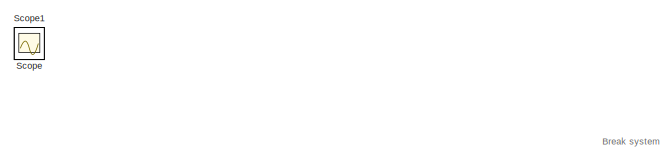
[diagram: root canvas - part 1/3, top center region]
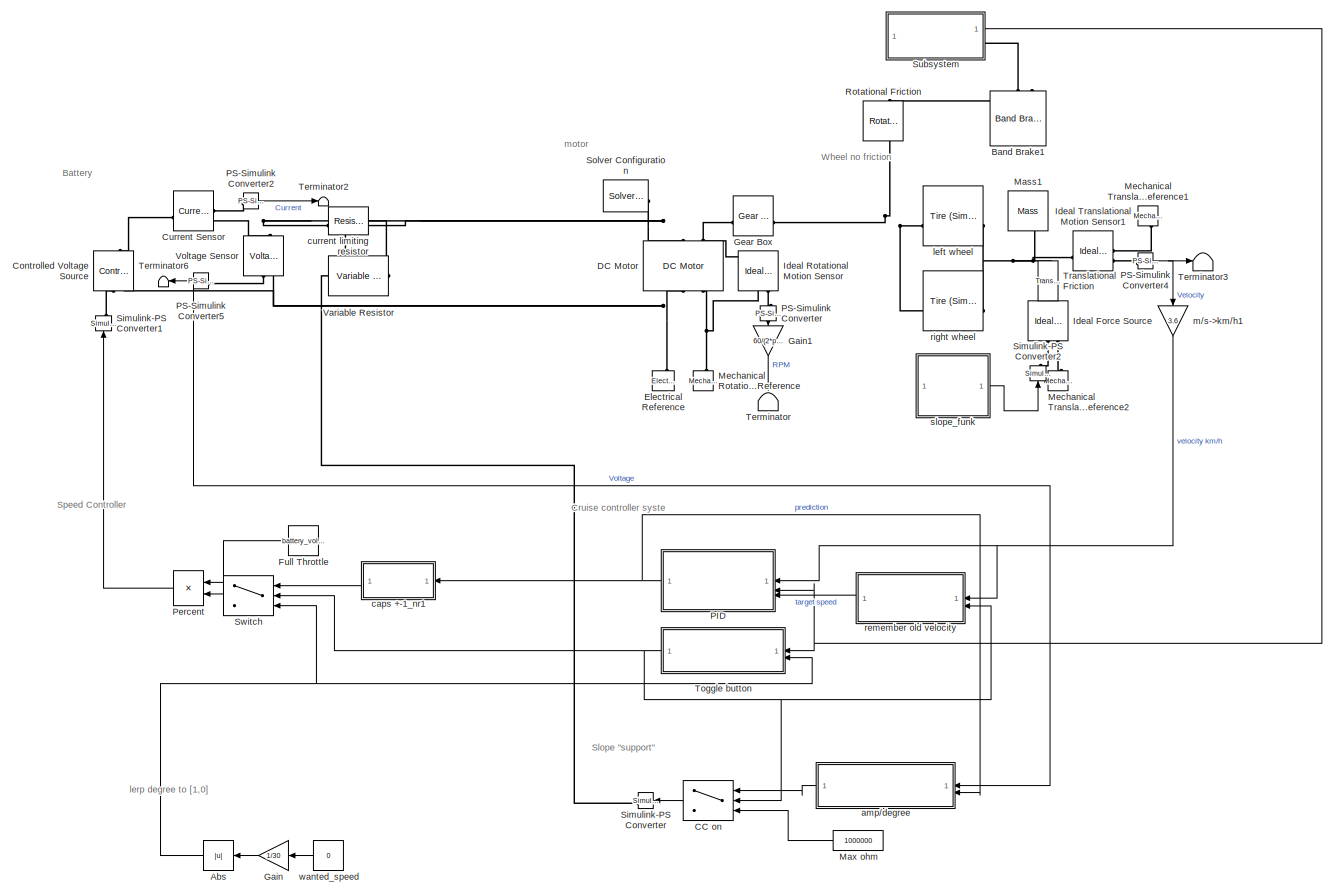
[diagram: root canvas - part 2/3, right side, full height]
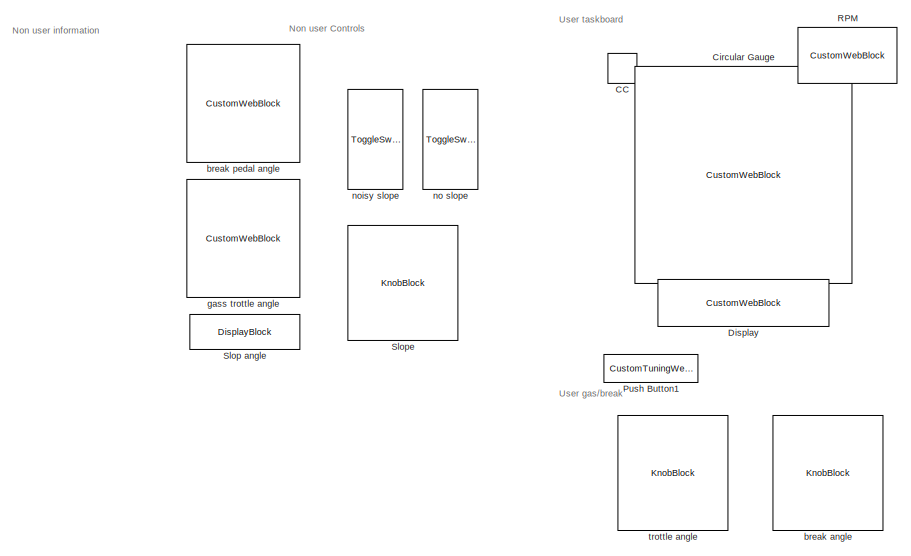
[diagram: root canvas - part 3/3, middle left region]
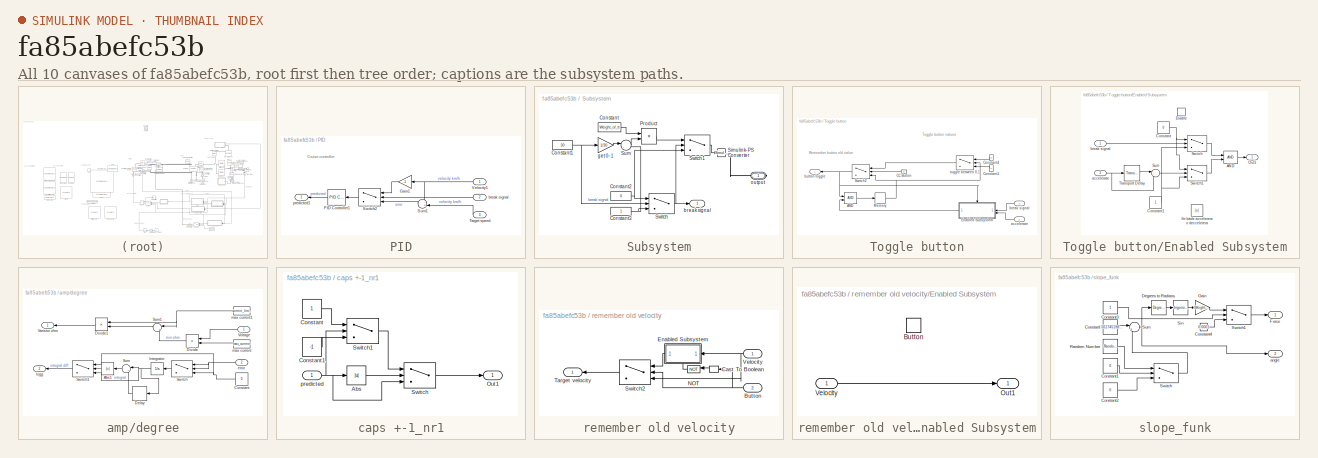
[diagram: thumbnail index - all 10 canvases of the model, root first then tree order]
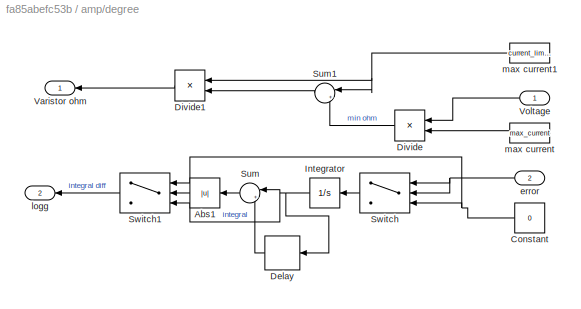
MODEL slx_fa85abefc53b
KIND model
CONFIG AbsTol = auto
CONFIG EnableMultiTasking = off
CONFIG FixedStep = auto
CONFIG MaxStep = auto
CONFIG MinStep = auto
CONFIG RelTol = 1e-3
CONFIG SampleTimeConstraint = Unconstrained
CONFIG SolverName = VariableStepAuto
CONFIG StartTime = 0.0
CONFIG StopTime = inf
BLOCK [Abs] Abs
  NameLocation = top
  SaturateOnIntegerOverflow = off
BLOCK [Reference] Band Brake1  REF=sdl_lib/Brakes & Detents/Rotational/Band Brake
  NameLocation = left
  SourceBlock = sdl_lib/Brakes & Detents/Rotational/Band Brake
  SourceType = Band Brake
BLOCK [LampBlock] CC
  LabelPosition = Hide
BLOCK [Switch] CC on
  Criteria = u2 ~= 0
  InputSameDT = off
  NameLocation = top
  SaturateOnIntegerOverflow = off
BLOCK [CustomWebBlock] Circular Gauge
  Configuration = {"components":[{"name":"CircularScaleComponent","settings":{"bounds":{"max":100,"min":0,"tickInterval":"auto"},"direction":"cw","flipLimits":0,"innerRadius":0.75,"internalTickHeightScaleFactor":1,"labelColor":[255,255,200],"labelFont":{"font":"Arial","fontSize":12},"labelRadius":0.528,"labelTransparency":1,"minorTickHeightScaleFactor":0.2,"needleImage":{"size":[200,50],"src":"data:image\/svg+xml;b...<+12640ch>
  LabelPosition = Hide
  ShowInitialText = on
BLOCK [Reference] Controlled Voltage Source  REF=fl_lib/Electrical/Electrical Sources/Controlled Voltage
Source
  NameLocation = right
  SourceBlock = fl_lib/Electrical/Electrical Sources/Controlled Voltage\nSource
  SourceType = Controlled Voltage\nSource
BLOCK [Reference] Current Sensor  REF=fl_lib/Electrical/Electrical Sensors/Current Sensor
  SourceBlock = fl_lib/Electrical/Electrical Sensors/Current Sensor
  SourceType = Current Sensor
BLOCK [Reference] DC Motor  REF=ee_lib/Electromechanical/Brushed Motors/DC Motor
  AttributesFormatString = Maxon:RE_65_388988_60
  NameLocation = right
  SourceBlock = ee_lib/Electromechanical/Brushed Motors/DC Motor
  SourceType = DC Motor
BLOCK [CustomWebBlock] Display
  Configuration = {"components":[{"name":"DisplayComponent","settings":{"bold":false,"font":"DSEG7 Classic","fontColor":[255,255,200],"fontSize":"14","format":"bank","formatString":"%d","italic":false,"position":[0,0,1,1],"underline":false}},{"name":"BackgroundImageComponent","settings":{"image":{"size":[300,80],"src":"data:image\/svg+xml;base64,PHN2ZyBpZD0iZnJhbWUiIHhtbG5zPSJodHRwOi8vd3d3LnczLm9yZy8yMDAwL3N2ZyIgeG...<+1636ch>
  LabelPosition = Hide
  ShowInitialText = on
BLOCK [Reference] Electrical Reference  REF=fl_lib/Electrical/Electrical Elements/Electrical Reference
  NameLocation = right
  SourceBlock = fl_lib/Electrical/Electrical Elements/Electrical Reference
  SourceType = Electrical Reference
BLOCK [Constant] Full Throttle
  NameLocation = top
  Value = battery_voltage
BLOCK [Gain] Gain
  Gain = 1/30
  NameLocation = top
BLOCK [Gain] Gain1
  Gain = 60/(2*pi)
  NameLocation = left
BLOCK [Reference] Gear Box  REF=fl_lib/Mechanical/Mechanisms/Gear Box
  SourceBlock = fl_lib/Mechanical/Mechanisms/Gear Box
  SourceType = Gear Box
BLOCK [Reference] Ideal Force Source  REF=fl_lib/Mechanical/Mechanical Sources/Ideal Force Source
  NameLocation = right
  SourceBlock = fl_lib/Mechanical/Mechanical Sources/Ideal Force Source
  SourceType = Ideal Force Source
BLOCK [Reference] Ideal Rotational Motion Sensor  REF=fl_lib/Mechanical/Mechanical Sensors/Ideal Rotational
Motion Sensor
  NameLocation = left
  SourceBlock = fl_lib/Mechanical/Mechanical Sensors/Ideal Rotational\nMotion Sensor
  SourceType = Ideal Rotational\nMotion Sensor
BLOCK [Reference] Ideal Translational Motion Sensor1  REF=fl_lib/Mechanical/Mechanical Sensors/Ideal Translational
Motion Sensor
  SourceBlock = fl_lib/Mechanical/Mechanical Sensors/Ideal Translational\nMotion Sensor
  SourceType = Ideal Translational\nMotion Sensor
BLOCK [Reference] Mass1  REF=fl_lib/Mechanical/Translational
Elements/Mass
  NameLocation = left
  SourceBlock = fl_lib/Mechanical/Translational\nElements/Mass
  SourceType = Mass
BLOCK [Constant] Max ohm
  NameLocation = top
  Value = 1000000
BLOCK [Reference] Mechanical Rotational Reference  REF=fl_lib/Mechanical/Rotational Elements/Mechanical
Rotational Reference
  NameLocation = right
  SourceBlock = fl_lib/Mechanical/Rotational Elements/Mechanical\nRotational Reference
  SourceType = Mechanical\nRotational Reference
BLOCK [Reference] Mechanical Translational Reference1  REF=fl_lib/Mechanical/Translational
Elements/Mechanical
Translational
Reference
  NameLocation = left
  SourceBlock = fl_lib/Mechanical/Translational\nElements/Mechanical\nTranslational\nReference
  SourceType = Mechanical\nTranslational\nReference
BLOCK [Reference] Mechanical Translational Reference2  REF=fl_lib/Mechanical/Translational
Elements/Mechanical
Translational
Reference
  NameLocation = right
  SourceBlock = fl_lib/Mechanical/Translational\nElements/Mechanical\nTranslational\nReference
  SourceType = Mechanical\nTranslational\nReference
BLOCK [SubSystem] PID
  NameLocation = top
BLOCK [Gain] PID/Gain1
  Gain = -1
  NameLocation = top
BLOCK [Reference] PID/PID Controller1  REF=slpidlib/PID Controller
  LibrarySourceBlock = simulink/Continuous/PID Controller
  NameLocation = top
  SourceBlock = slpidlib/PID Controller
  SourceType = PID 1dof
BLOCK [Sum] PID/Sum1
  Inputs = -+
  NameLocation = top
BLOCK [Switch] PID/Switch2
  Criteria = u2 ~= 0
  InputSameDT = off
  NameLocation = top
  SaturateOnIntegerOverflow = off
BLOCK [Inport] PID/Target speed
  NameLocation = top
  Port = 3
BLOCK [Inport] PID/Velocity1
  NameLocation = top
BLOCK [Inport] PID/break signal
  NameLocation = top
  Port = 2
BLOCK [Outport] PID/predicted1
BLOCK [Reference] PS-Simulink Converter  REF=nesl_utility/PS-Simulink
Converter
  NameLocation = left
  SourceBlock = nesl_utility/PS-Simulink\nConverter
  SourceType = PS-Simulink\nConverter
BLOCK [Reference] PS-Simulink Converter2  REF=nesl_utility/PS-Simulink
Converter
  SourceBlock = nesl_utility/PS-Simulink\nConverter
  SourceType = PS-Simulink\nConverter
BLOCK [Reference] PS-Simulink Converter4  REF=nesl_utility/PS-Simulink
Converter
  SourceBlock = nesl_utility/PS-Simulink\nConverter
  SourceType = PS-Simulink\nConverter
BLOCK [Reference] PS-Simulink Converter5  REF=nesl_utility/PS-Simulink
Converter
  NameLocation = top
  SourceBlock = nesl_utility/PS-Simulink\nConverter
  SourceType = PS-Simulink\nConverter
BLOCK [Product] Percent
  Inputs = **
  NameLocation = top
BLOCK [CustomTuningWebBlock] Push Button1
  Configuration = {"components":[{"name":"BackgroundImageComponent","settings":{"image":{"size":[0,0],"src":"default","srcOrientation":"horizontal"},"position":[0,0,1,1],"scaleMode":"0"}},{"name":"ButtonStateComponent","settings":{"buttonType":"momentary","clickFcn":"","image":{"size":[180,45],"srcOrientation":"Right"},"latched":false,"offValue":[],"onValue":"1","position":[0,0,1,1],"pressDelay":"500","pressFcn":""...<+15731ch>
  LabelPosition = Hide
  ShowInitialText = on
BLOCK [CustomWebBlock] RPM
  Configuration = {"components":[{"name":"CircularScaleComponent","settings":{"bounds":{"max":4000,"min":0,"tickInterval":"auto"},"direction":"cw","flipLimits":0,"innerRadius":0.75,"internalTickHeightScaleFactor":1,"labelColor":[255,255,200],"labelFont":{"font":"Arial","fontSize":12},"labelRadius":0.528,"labelTransparency":1,"minorTickHeightScaleFactor":0.2,"needleImage":{"size":[200,50],"src":"data:image\/svg+xml;...<+8211ch>
  LabelPosition = Hide
  ShowInitialText = on
BLOCK [Reference] Rotational Friction  REF=fl_lib/Mechanical/Rotational Elements/Rotational Friction
  NameLocation = left
  SourceBlock = fl_lib/Mechanical/Rotational Elements/Rotational Friction
  SourceType = Rotational Friction
BLOCK [Scope] Scope
  Floating = off
  IOType = viewer
  NumInputPorts = 1
  ScopeSpecificationString = Simulink.scopes.TimeScopeBlockCfg('CurrentConfiguration', extmgr.ConfigurationSet(extmgr.Configuration('Core','General UI',true),extmgr.Configuration('Core','Source UI',true),extmgr.Configuration('Sources','WiredSimulink',true),extmgr.Configuration('Visuals','Time Domain',true,'SerializedDisplays',{struct('MinYLimReal','-10.00000','MaxYLimReal','10.00000','YLabelReal','','MinYLimMag','0.00000','Ma...<+1445ch>
BLOCK [Scope] Scope1
  Floating = off
  IOType = viewer
  NumInputPorts = 1
  ScopeSpecificationString = Simulink.scopes.TimeScopeBlockCfg('CurrentConfiguration', extmgr.ConfigurationSet(extmgr.Configuration('Core','General UI',true),extmgr.Configuration('Core','Source UI',true),extmgr.Configuration('Sources','WiredSimulink',true,'DataLoggingVariableName','ScopeData1'),extmgr.Configuration('Visuals','Time Domain',true,'SerializedDisplays',{struct('MinYLimReal','-10.00000','MaxYLimReal','10.00000','YL...<+1454ch>
BLOCK [Reference] Simulink-PS Converter  REF=nesl_utility/Simulink-PS
Converter
  NameLocation = top
  SourceBlock = nesl_utility/Simulink-PS\nConverter
  SourceType = Simulink-PS\nConverter
BLOCK [Reference] Simulink-PS Converter1  REF=nesl_utility/Simulink-PS
Converter
  NameLocation = right
  SourceBlock = nesl_utility/Simulink-PS\nConverter
  SourceType = Simulink-PS\nConverter
BLOCK [Reference] Simulink-PS Converter2  REF=nesl_utility/Simulink-PS
Converter
  NameLocation = right
  SourceBlock = nesl_utility/Simulink-PS\nConverter
  SourceType = Simulink-PS\nConverter
BLOCK [DisplayBlock] Slop angle
  LabelPosition = Hide
  Transparency = 1
BLOCK [KnobBlock] Slope 
  ScaleMax = 20
  ScaleMin = -20
BLOCK [Reference] Solver Configuration  REF=nesl_utility/Solver
Configuration
  SourceBlock = nesl_utility/Solver\nConfiguration
  SourceType = Solver\nConfiguration
BLOCK [SubSystem] Subsystem
BLOCK [Constant] Subsystem/Constant
  Value = Weight_of_tt
BLOCK [Constant] Subsystem/Constant1
  Value = 30
BLOCK [Constant] Subsystem/Constant2
  Value = 0
BLOCK [Constant] Subsystem/Constant3
BLOCK [Product] Subsystem/Product
BLOCK [Reference] Subsystem/Simulink-PS Converter  REF=nesl_utility/Simulink-PS
Converter
  SourceBlock = nesl_utility/Simulink-PS\nConverter
  SourceType = Simulink-PS\nConverter
BLOCK [Sum] Subsystem/Sum
  Inputs = |-+
BLOCK [Switch] Subsystem/Switch
  InputSameDT = off
  SaturateOnIntegerOverflow = off
  Threshold = 29
BLOCK [Switch] Subsystem/Switch1
  Criteria = u2 ~= 0
  InputSameDT = off
  SaturateOnIntegerOverflow = off
  Threshold = 30
BLOCK [Outport] Subsystem/break signal
  NameLocation = top
BLOCK [Gain] Subsystem/get 0-1
  Gain = 1/30
BLOCK [PMIOPort] Subsystem/output
  Side = Right
BLOCK [Switch] Switch
  Criteria = u2 > Threshold
  InputSameDT = off
  NameLocation = top
  SaturateOnIntegerOverflow = off
BLOCK [Terminator] Terminator
  NameLocation = left
BLOCK [Terminator] Terminator2
BLOCK [Terminator] Terminator3
BLOCK [Terminator] Terminator6
  NameLocation = top
BLOCK [SubSystem] Toggle button
  NameLocation = top
BLOCK [Logic] Toggle button/AND
  AllPortsSameDT = off
  IconShape = distinctive
  OutDataTypeStr = boolean
BLOCK [Constant] Toggle button/CC Button
  NameLocation = top
  Value = 0
BLOCK [Constant] Toggle button/Constant1
  NameLocation = top
BLOCK [Constant] Toggle button/Constant4
  NameLocation = top
  Value = 0
BLOCK [SubSystem] Toggle button/Enabled Subsystem
  TreatAsAtomicUnit = on
BLOCK [Logic] Toggle button/Enabled Subsystem/AND
  AllPortsSameDT = off
  IconShape = distinctive
  OutDataTypeStr = boolean
BLOCK [Constant] Toggle button/Enabled Subsystem/Constant
  Value = 0
BLOCK [Constant] Toggle button/Enabled Subsystem/Constant1
BLOCK [EnablePort] Toggle button/Enabled Subsystem/Enable
BLOCK [Outport] Toggle button/Enabled Subsystem/Out1
  InitialOutput = 1
BLOCK [Sum] Toggle button/Enabled Subsystem/Sum
  Inputs = |-+
BLOCK [Switch] Toggle button/Enabled Subsystem/Switch
  Criteria = u2 > Threshold
  InputSameDT = off
  SaturateOnIntegerOverflow = off
BLOCK [Switch] Toggle button/Enabled Subsystem/Switch1
  Criteria = u2 > Threshold
  InputSameDT = off
  SaturateOnIntegerOverflow = off
  Threshold = 0.1
BLOCK [TransportDelay] Toggle button/Enabled Subsystem/Transport Delay
BLOCK [Inport] Toggle button/Enabled Subsystem/accelerate
  Port = 2
BLOCK [Inport] Toggle button/Enabled Subsystem/break signal
BLOCK [Abs] Toggle button/Enabled Subsystem/för både accelerera o deccelerera
  Commented = on
  SaturateOnIntegerOverflow = off
BLOCK [Memory] Toggle button/Memory
BLOCK [Switch] Toggle button/Switch2
  Criteria = u2 > Threshold
  InputSameDT = off
  NameLocation = top
  SaturateOnIntegerOverflow = off
BLOCK [Inport] Toggle button/accelerate
  NameLocation = top
  Port = 2
BLOCK [Inport] Toggle button/break signal
  NameLocation = top
BLOCK [Outport] Toggle button/button toggle
BLOCK [Switch] Toggle button/toggle between 0,1
  Criteria = u2 > Threshold
  InputSameDT = off
  NameLocation = top
  SaturateOnIntegerOverflow = off
BLOCK [Reference] Translational Friction  REF=fl_lib/Mechanical/Translational
Elements/Translational
Friction
  NameLocation = right
  SourceBlock = fl_lib/Mechanical/Translational\nElements/Translational\nFriction
  SourceType = Translational\nFriction
BLOCK [Reference] Variable Resistor  REF=fl_lib/Electrical/Electrical Elements/Variable Resistor
  SourceBlock = fl_lib/Electrical/Electrical Elements/Variable Resistor
  SourceType = Variable Resistor
BLOCK [Reference] Voltage Sensor  REF=fl_lib/Electrical/Electrical Sensors/Voltage Sensor
  NameLocation = right
  SourceBlock = fl_lib/Electrical/Electrical Sensors/Voltage Sensor
  SourceType = Voltage Sensor
BLOCK [SubSystem] amp//degree
  NameLocation = top
BLOCK [Abs] amp//degree/Abs1
  NameLocation = top
  SaturateOnIntegerOverflow = off
BLOCK [Constant] amp//degree/Constant
  NameLocation = top
  Value = 0
BLOCK [Delay] amp//degree/Delay
  InputPortMap = u0
  NameLocation = top
BLOCK [Product] amp//degree/Divide
  Inputs = */
  NameLocation = top
BLOCK [Product] amp//degree/Divide1
  Inputs = */
  NameLocation = top
BLOCK [Integrator] amp//degree/Integrator
  NameLocation = top
BLOCK [Sum] amp//degree/Sum
  Inputs = |++
  NameLocation = top
BLOCK [Sum] amp//degree/Sum1
  Inputs = |+-
  NameLocation = top
BLOCK [Switch] amp//degree/Switch
  Criteria = u2 > Threshold
  InputSameDT = off
  NameLocation = top
  SaturateOnIntegerOverflow = off
  Threshold = 1
BLOCK [Switch] amp//degree/Switch1
  InputSameDT = off
  NameLocation = top
  SaturateOnIntegerOverflow = off
  Threshold = 1
BLOCK [Outport] amp//degree/Varistor ohm
  NameLocation = top
BLOCK [Inport] amp//degree/Voltage
  NameLocation = top
BLOCK [Inport] amp//degree/error
  NameLocation = top
  Port = 2
BLOCK [Outport] amp//degree/logg
  NameLocation = top
  Port = 2
BLOCK [Constant] amp//degree/max current
  NameLocation = top
  Value = max_current
BLOCK [Constant] amp//degree/max current1
  NameLocation = top
  Value = current_limiting_resistor
BLOCK [KnobBlock] break angle
  ScaleMax = 30
BLOCK [CustomWebBlock] break pedal angle
  Configuration = {"components":[{"name":"CircularScaleComponent","settings":{"bounds":{"max":90,"min":0,"tickInterval":"auto"},"direction":"cw","flipLimits":0,"innerRadius":0.75,"internalTickHeightScaleFactor":1,"labelColor":[255,255,200],"labelFont":{"font":"Arial","fontSize":12},"labelRadius":0.6,"labelTransparency":1,"minorTickHeightScaleFactor":0.2,"needleImage":{"size":[200,50],"src":"data:image\/svg+xml;base...<+7617ch>
  LabelPosition = Hide
  NameLocation = left
  ShowInitialText = on
BLOCK [SubSystem] caps +-1_nr1
  NameLocation = top
  TreatAsAtomicUnit = on
BLOCK [Abs] caps +-1_nr1/Abs
  SaturateOnIntegerOverflow = off
BLOCK [Constant] caps +-1_nr1/Constant
BLOCK [Constant] caps +-1_nr1/Constant1
  Value = -1
BLOCK [Outport] caps +-1_nr1/Out1
BLOCK [Switch] caps +-1_nr1/Switch
  Criteria = u2 > Threshold
  InputSameDT = off
  SaturateOnIntegerOverflow = off
  Threshold = 1
BLOCK [Switch] caps +-1_nr1/Switch1
  Criteria = u2 > Threshold
  InputSameDT = off
  SaturateOnIntegerOverflow = off
BLOCK [Inport] caps +-1_nr1/predicted
BLOCK [Reference] current limiting resistor  REF=fl_lib/Electrical/Electrical Elements/Resistor
  SourceBlock = fl_lib/Electrical/Electrical Elements/Resistor
  SourceType = Resistor
BLOCK [CustomWebBlock] gass trottle angle
  Configuration = {"components":[{"name":"CircularScaleComponent","settings":{"bounds":{"max":90,"min":0,"tickInterval":"auto"},"direction":"cw","flipLimits":0,"innerRadius":0.75,"internalTickHeightScaleFactor":1,"labelColor":[255,255,200],"labelFont":{"font":"Arial","fontSize":12},"labelRadius":0.6,"labelTransparency":1,"minorTickHeightScaleFactor":0.2,"needleImage":{"size":[200,50],"src":"data:image\/svg+xml;base...<+7617ch>
  LabelPosition = Hide
  NameLocation = left
  ShowInitialText = on
BLOCK [Reference] left wheel  REF=sdl_lib/Tires & Vehicles/Tire (Simple)
  SourceBlock = sdl_lib/Tires & Vehicles/Tire (Simple)
  SourceType = Tire (Simple)
BLOCK [Gain] m//s->km//h1
  Gain = 3.6
  NameLocation = left
BLOCK [ToggleSwitchBlock] no slope
BLOCK [ToggleSwitchBlock] noisy slope
BLOCK [SubSystem] remember old velocity
  NameLocation = top
BLOCK [Inport] remember old velocity/Button
  NameLocation = top
  Port = 2
BLOCK [DataTypeConversion] remember old velocity/Cast To Boolean
  NameLocation = top
  OutDataTypeStr = boolean
  RndMeth = Floor
  SaturateOnIntegerOverflow = off
BLOCK [SubSystem] remember old velocity/Enabled Subsystem
  NameLocation = top
  TreatAsAtomicUnit = on
BLOCK [EnablePort] remember old velocity/Enabled Subsystem/Button
BLOCK [Outport] remember old velocity/Enabled Subsystem/Out1
BLOCK [Inport] remember old velocity/Enabled Subsystem/Velocity
BLOCK [Logic] remember old velocity/NOT
  AllPortsSameDT = off
  IconShape = distinctive
  NameLocation = top
  Operator = NOT
  OutDataTypeStr = boolean
BLOCK [Switch] remember old velocity/Switch2
  Criteria = u2 ~= 0
  InputSameDT = off
  NameLocation = top
  SaturateOnIntegerOverflow = off
BLOCK [Outport] remember old velocity/Target velocity
BLOCK [Inport] remember old velocity/Velocity
  NameLocation = top
BLOCK [Reference] right wheel  REF=sdl_lib/Tires & Vehicles/Tire (Simple)
  SourceBlock = sdl_lib/Tires & Vehicles/Tire (Simple)
  SourceType = Tire (Simple)
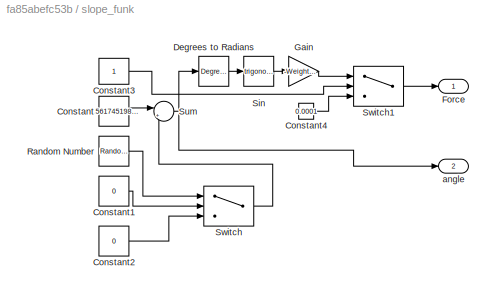
BLOCK [SubSystem] slope_funk
BLOCK [Constant] slope_funk/Constant
  Value = 8.56174519856771
BLOCK [Constant] slope_funk/Constant1
  Value = 0
BLOCK [Constant] slope_funk/Constant2
  Value = 0
BLOCK [Constant] slope_funk/Constant3
BLOCK [Constant] slope_funk/Constant4
  Value = 0.0001
BLOCK [Reference] slope_funk/Degrees to Radians  REF=simulink_extras/Transformations/Degrees to
Radians
  SourceBlock = simulink_extras/Transformations/Degrees to\nRadians
  SourceType = DegreesToRadians
BLOCK [Outport] slope_funk/Force
BLOCK [Gain] slope_funk/Gain
  Gain = -Weight*gravitation
BLOCK [RandomNumber] slope_funk/Random Number
  SampleTime = 0.01
BLOCK [Trigonometry] slope_funk/Sin
BLOCK [Sum] slope_funk/Sum
  Inputs = |++
BLOCK [Switch] slope_funk/Switch
  Criteria = u2 ~= 0
  InputSameDT = off
  SaturateOnIntegerOverflow = off
BLOCK [Switch] slope_funk/Switch1
  Criteria = u2 ~= 0
  InputSameDT = off
  SaturateOnIntegerOverflow = off
BLOCK [Outport] slope_funk/angle
  Port = 2
BLOCK [KnobBlock] trottle angle
  ScaleMax = 30
BLOCK [Constant] wanted_speed
  NameLocation = top
  Value = 0
ANNOTATION (root): Battery
ANNOTATION (root): Break system
ANNOTATION (root): Cruise controller syste
ANNOTATION (root): Non user Controls
ANNOTATION (root): Non user information
ANNOTATION (root): Slope "support"
ANNOTATION (root): Speed Controller
ANNOTATION (root): User gas/break
ANNOTATION (root): User taskboard
ANNOTATION (root): Wheel no friction
ANNOTATION (root): lerp degree to [1,0]
ANNOTATION (root): motor
ANNOTATION PID: Cruise controller
ANNOTATION Toggle button: Remember button old value
ANNOTATION Toggle button: Toggle button values
NET Abs:1 -> Switch:3, Toggle button:2
LINE CC on:1 -> Simulink-PS Converter:1
LINE Full Throttle:1 -> Percent:1
LINE Gain1:1 -> Terminator:1
LINE Gain:1 -> Abs:1
LINE Max ohm:1 -> CC on:3
LINE PID/Gain1:1 -> PID/Switch2:1
LINE PID/PID Controller1:1 -> PID/predicted1:1
LINE PID/Sum1:1 -> PID/Switch2:3
LINE PID/Switch2:1 -> PID/PID Controller1:1
LINE PID/Target speed:1 -> PID/Sum1:2
NET PID/Velocity1:1 -> PID/Gain1:1, PID/Sum1:1
LINE PID/break signal:1 -> PID/Switch2:2
NET PID:1 -> amp//degree:2, caps +-1_nr1:1
LINE PS-Simulink Converter2:1 -> Terminator2:1
NET PS-Simulink Converter4:1 -> Terminator3:1, m//s->km//h1:1
NET PS-Simulink Converter5:1 -> Terminator6:1, amp//degree:1
LINE PS-Simulink Converter:1 -> Gain1:1
LINE Percent:1 -> Simulink-PS Converter1:1
NET Subsystem/Constant1:1 -> Subsystem/Switch:2, Subsystem/get 0-1:1
NET Subsystem/Constant2:1 -> Subsystem/Switch1:3, Subsystem/Switch:1
NET Subsystem/Constant3:1 -> Subsystem/Sum:2, Subsystem/Switch:3
LINE Subsystem/Constant:1 -> Subsystem/Product:1
LINE Subsystem/Product:1 -> Subsystem/Switch1:1
LINE Subsystem/Sum:1 -> Subsystem/Product:2
LINE Subsystem/Switch1:1 -> Subsystem/Simulink-PS Converter:1
NET Subsystem/Switch:1 -> Subsystem/Switch1:2, Subsystem/break signal:1
LINE Subsystem/get 0-1:1 -> Subsystem/Sum:1
NET Subsystem:1 -> PID:2, Toggle button:1
LINE Switch:1 -> Percent:2
LINE Toggle button/AND:1 -> Toggle button/Memory:1
LINE Toggle button/CC Button:1 -> Toggle button/Switch2:2
LINE Toggle button/Constant1:1 -> Toggle button/toggle between 0,1:3
LINE Toggle button/Constant4:1 -> Toggle button/toggle between 0,1:1
LINE Toggle button/Enabled Subsystem/AND:1 -> Toggle button/Enabled Subsystem/Out1:1
NET Toggle button/Enabled Subsystem/Constant1:1 -> Toggle button/Enabled Subsystem/Switch1:3, Toggle button/Enabled Subsystem/Switch:3
NET Toggle button/Enabled Subsystem/Constant:1 -> Toggle button/Enabled Subsystem/Switch1:1, Toggle button/Enabled Subsystem/Switch:1
LINE Toggle button/Enabled Subsystem/Sum:1 -> Toggle button/Enabled Subsystem/Switch1:2
LINE Toggle button/Enabled Subsystem/Switch1:1 -> Toggle button/Enabled Subsystem/AND:2
LINE Toggle button/Enabled Subsystem/Switch:1 -> Toggle button/Enabled Subsystem/AND:1
LINE Toggle button/Enabled Subsystem/Transport Delay:1 -> Toggle button/Enabled Subsystem/Sum:1
NET Toggle button/Enabled Subsystem/accelerate:1 -> Toggle button/Enabled Subsystem/Sum:2, Toggle button/Enabled Subsystem/Transport Delay:1
LINE Toggle button/Enabled Subsystem/break signal:1 -> Toggle button/Enabled Subsystem/Switch:2
LINE Toggle button/Enabled Subsystem:1 -> Toggle button/AND:2
NET Toggle button/Memory:1 -> Toggle button/Switch2:3, Toggle button/toggle between 0,1:2
NET Toggle button/Switch2:1 -> Toggle button/AND:1, Toggle button/Enabled Subsystem:enable, Toggle button/button toggle:1
LINE Toggle button/accelerate:1 -> Toggle button/Enabled Subsystem:2
LINE Toggle button/break signal:1 -> Toggle button/Enabled Subsystem:1
LINE Toggle button/toggle between 0,1:1 -> Toggle button/Switch2:1
NET Toggle button:1 -> CC on:2, Switch:2, remember old velocity:2
LINE amp//degree/Abs1:1 -> amp//degree/Switch1:2
NET amp//degree/Constant:1 -> amp//degree/Switch1:1, amp//degree/Switch:3
LINE amp//degree/Delay:1 -> amp//degree/Sum:2
LINE amp//degree/Divide1:1 -> amp//degree/Varistor ohm:1
LINE amp//degree/Divide:1 -> amp//degree/Sum1:2
NET amp//degree/Integrator:1 -> amp//degree/Delay:1, amp//degree/Sum:1, amp//degree/Switch1:3
LINE amp//degree/Sum1:1 -> amp//degree/Divide1:2
LINE amp//degree/Sum:1 -> amp//degree/Abs1:1
LINE amp//degree/Switch1:1 -> amp//degree/logg:1
LINE amp//degree/Switch:1 -> amp//degree/Integrator:1
LINE amp//degree/Voltage:1 -> amp//degree/Divide:1
NET amp//degree/error:1 -> amp//degree/Switch:1, amp//degree/Switch:2
NET amp//degree/max current1:1 -> amp//degree/Divide1:1, amp//degree/Sum1:1
LINE amp//degree/max current:1 -> amp//degree/Divide:2
LINE amp//degree:1 -> CC on:1
LINE caps +-1_nr1/Abs:1 -> caps +-1_nr1/Switch:2
LINE caps +-1_nr1/Constant1:1 -> caps +-1_nr1/Switch1:3
LINE caps +-1_nr1/Constant:1 -> caps +-1_nr1/Switch1:1
LINE caps +-1_nr1/Switch1:1 -> caps +-1_nr1/Switch:1
LINE caps +-1_nr1/Switch:1 -> caps +-1_nr1/Out1:1
NET caps +-1_nr1/predicted:1 -> caps +-1_nr1/Abs:1, caps +-1_nr1/Switch1:2, caps +-1_nr1/Switch:3
LINE caps +-1_nr1:1 -> Switch:1
NET m//s->km//h1:1 -> PID:1, remember old velocity:1
NET remember old velocity/Button:1 -> remember old velocity/Cast To Boolean:1, remember old velocity/Switch2:2
LINE remember old velocity/Cast To Boolean:1 -> remember old velocity/NOT:1
LINE remember old velocity/Enabled Subsystem/Velocity:1 -> remember old velocity/Enabled Subsystem/Out1:1
LINE remember old velocity/Enabled Subsystem:1 -> remember old velocity/Switch2:1
LINE remember old velocity/NOT:1 -> remember old velocity/Enabled Subsystem:enable
LINE remember old velocity/Switch2:1 -> remember old velocity/Target velocity:1
NET remember old velocity/Velocity:1 -> remember old velocity/Enabled Subsystem:1, remember old velocity/Switch2:3
LINE remember old velocity:1 -> PID:3
LINE slope_funk/Constant1:1 -> slope_funk/Switch:2
LINE slope_funk/Constant2:1 -> slope_funk/Switch:3
LINE slope_funk/Constant3:1 -> slope_funk/Switch1:2
LINE slope_funk/Constant4:1 -> slope_funk/Switch1:3
LINE slope_funk/Constant:1 -> slope_funk/Sum:1
LINE slope_funk/Degrees to Radians:1 -> slope_funk/Sin:1
LINE slope_funk/Gain:1 -> slope_funk/Switch1:1
LINE slope_funk/Random Number:1 -> slope_funk/Switch:1
LINE slope_funk/Sin:1 -> slope_funk/Gain:1
NET slope_funk/Sum:1 -> slope_funk/Degrees to Radians:1, slope_funk/angle:1
LINE slope_funk/Switch1:1 -> slope_funk/Force:1
LINE slope_funk/Switch:1 -> slope_funk/Sum:2
LINE slope_funk:1 -> Simulink-PS Converter2:1
LINE wanted_speed:1 -> Gain:1
PLINE Band Brake1:LConn1 -- Subsystem:RConn1
PLINE Band Brake1:LConn2 -- Rotational Friction:LConn1
PLINE Controlled Voltage Source:LConn1 -- Current Sensor:LConn1
PLINE Controlled Voltage Source:RConn1 -- Simulink-PS Converter1:RConn1
PNET net1: Controlled Voltage Source:RConn2 -- DC Motor:RConn1 -- Electrical Reference:LConn1 -- Voltage Sensor:RConn2
PLINE Current Sensor:RConn1 -- PS-Simulink Converter2:LConn1
PNET net2: Current Sensor:RConn2 -- Variable Resistor:LConn2 -- Voltage Sensor:LConn1 -- current limiting resistor:LConn1
PNET net3: DC Motor:LConn1 -- Solver Configuration:RConn1 -- Variable Resistor:RConn1 -- current limiting resistor:RConn1
PNET net4: DC Motor:LConn2 -- Gear Box:LConn1 -- Ideal Rotational Motion Sensor:LConn1
PNET net5: DC Motor:RConn2 -- Ideal Rotational Motion Sensor:RConn1 -- Mechanical Rotational Reference:LConn1
PNET net6: Gear Box:RConn1 -- Rotational Friction:RConn1 -- left wheel:LConn1 -- right wheel:LConn1
PLINE Ideal Force Source:LConn1 -- Translational Friction:LConn1
PLINE Ideal Force Source:RConn1 -- Simulink-PS Converter2:RConn1
PLINE Ideal Force Source:RConn2 -- Mechanical Translational Reference2:LConn1
PLINE Ideal Rotational Motion Sensor:RConn2 -- PS-Simulink Converter:LConn1
PNET net7: Ideal Translational Motion Sensor1:LConn1 -- Mass1:LConn1 -- Translational Friction:RConn1 -- left wheel:RConn1 -- right wheel:RConn1
PLINE Ideal Translational Motion Sensor1:RConn1 -- Mechanical Translational Reference1:LConn1
PLINE Ideal Translational Motion Sensor1:RConn2 -- PS-Simulink Converter4:LConn1
PLINE PS-Simulink Converter5:LConn1 -- Voltage Sensor:RConn1
PLINE Simulink-PS Converter:RConn1 -- Variable Resistor:LConn1
PLINE Subsystem/Simulink-PS Converter:RConn1 -- Subsystem/output:RConn1
note: NET lines group one-source signal fan-out (src -> all destinations, sorted); 1:1 wires keep LINE; PNET lines group multi-terminal physical nets as a canonical sorted terminal list (undirected conserving connections); 2-terminal nets keep the pairwise PLINE form
